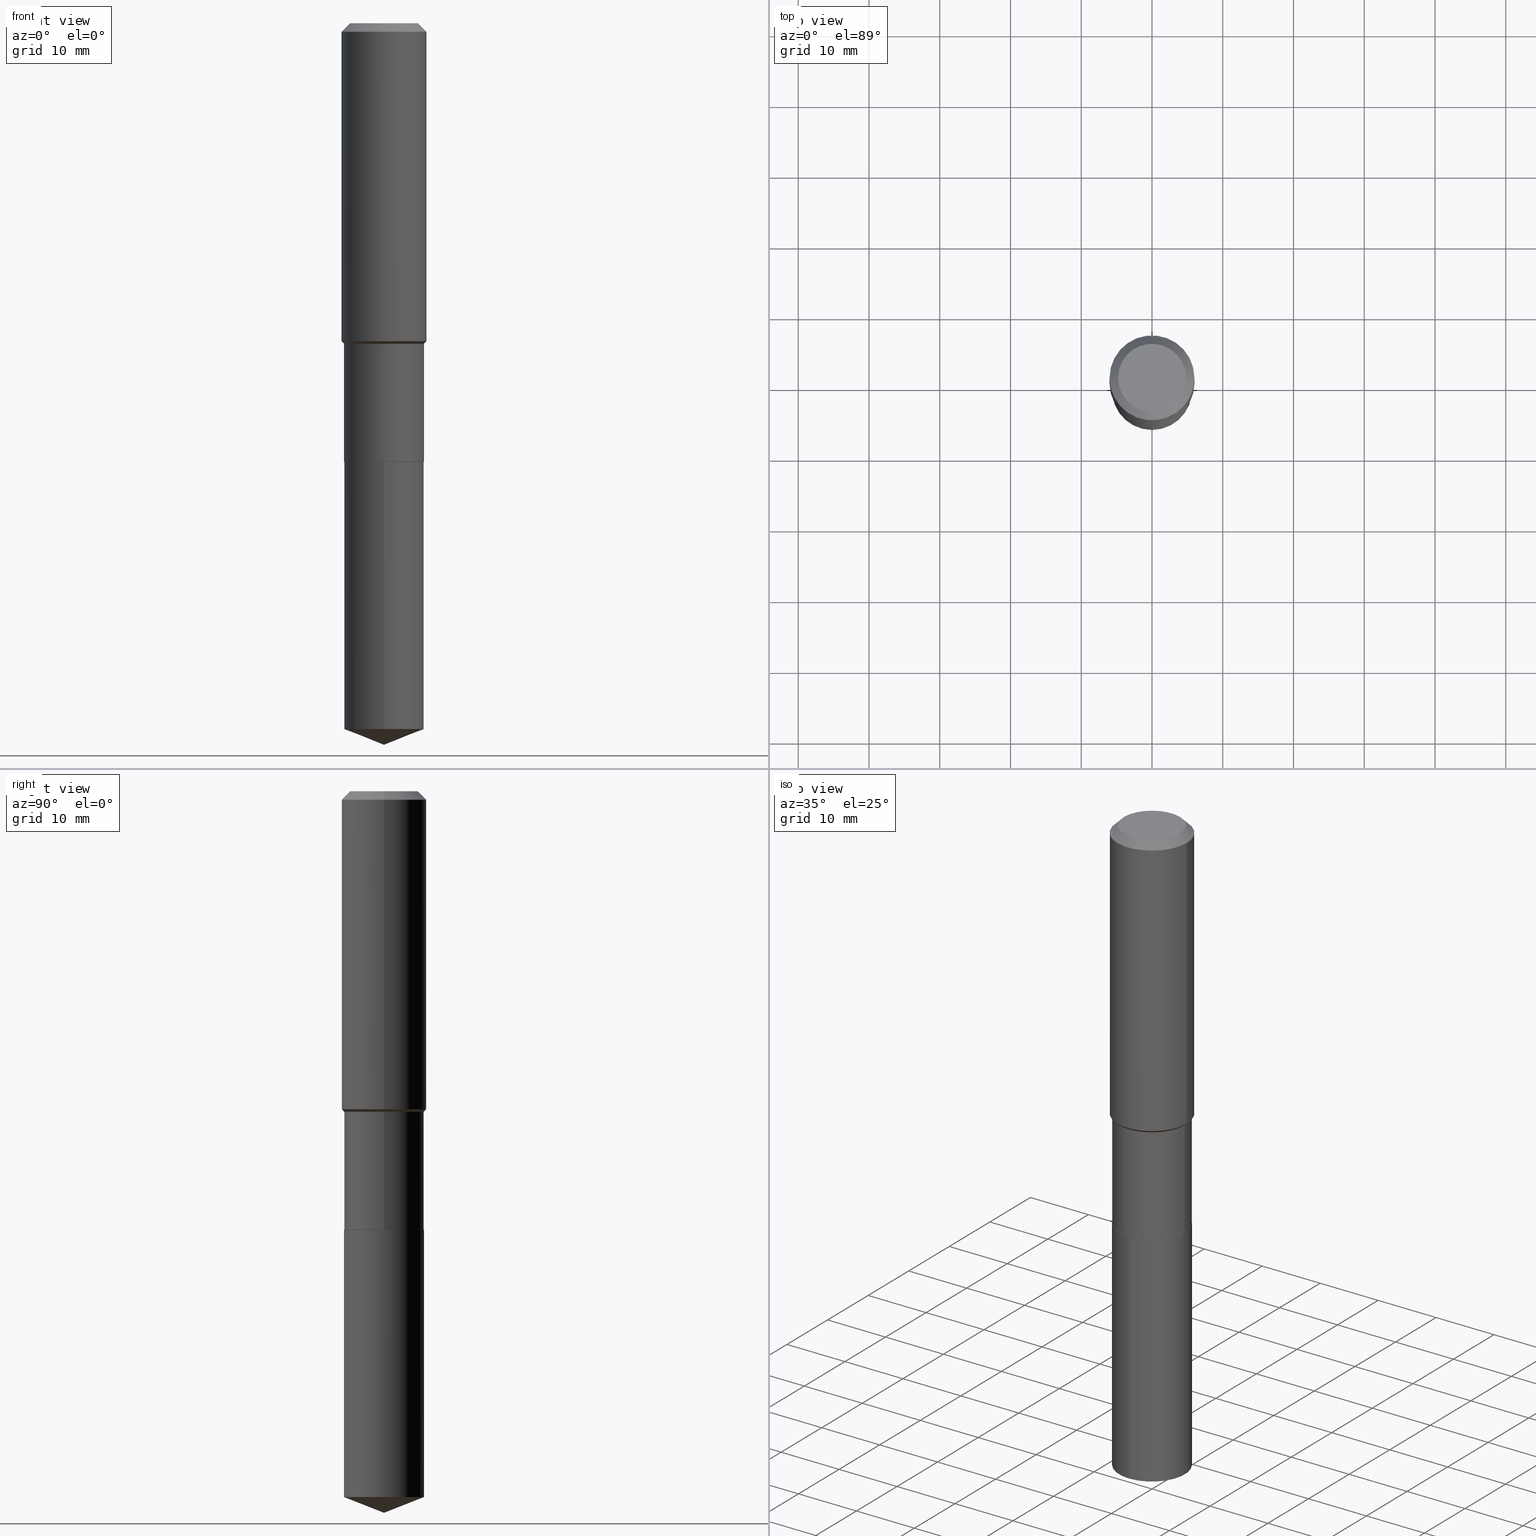
[diagram: canonical four-view strip — front | top / right | iso, engineering-drawing reading convention]
A machine part, canonical four-view strip (front | top / right | iso — engineering-drawing reading convention). The complete STEP part file that produces these views, byte-faithful:
ISO-10303-21;
HEADER;
FILE_DESCRIPTION (( 'STEP AP203' ),
    '1' );
FILE_NAME ('66483.STEP',
    '2024-04-24T23:32:22',
    ( '' ),
    ( '' ),
    'SwSTEP 2.0',
    'SolidWorks 2023',
    '' );
FILE_SCHEMA (( 'CONFIG_CONTROL_DESIGN' ));
ENDSEC;

DATA;
#1 = DIRECTION ( 'NONE',  ( -0.7071067811865453523, 2.468850131082234184E-15, -0.7071067811865496822 ) ) ;
#2 = DIRECTION ( 'NONE',  ( -2.445468806185136597E-29, 3.491481338843145583E-15, 1.000000000000000000 ) ) ;
#3 = ADVANCED_FACE ( 'NONE', ( #105 ), #303, .T. ) ;
#4 = DIRECTION ( 'NONE',  ( -2.445468806185136597E-29, 3.491481338843145583E-15, 1.000000000000000000 ) ) ;
#5 = EDGE_LOOP ( 'NONE', ( #47, #256, #193, #173 ) ) ;
#6 = DIRECTION ( 'NONE',  ( 1.000000000000000000, -6.982962677686262766E-15, 0.000000000000000000 ) ) ;
#7 = VECTOR ( 'NONE', #37, 39.37007874015748854 ) ;
#8 = DIRECTION ( 'NONE',  ( -6.982962677686265133E-15, -1.000000000000000000, 3.498627837350004222E-15 ) ) ;
#9 = AXIS2_PLACEMENT_3D ( 'NONE', #206, #2, #6 ) ;
#10 = CC_DESIGN_PERSON_AND_ORGANIZATION_ASSIGNMENT ( #281, #391, ( #221 ) ) ;
#11 = FACE_OUTER_BOUND ( 'NONE', #5, .T. ) ;
#12 = LINE ( 'NONE', #46, #124 ) ;
#13 = EDGE_CURVE ( 'NONE', #118, #360, #73, .T. ) ;
#14 = CARTESIAN_POINT ( 'NONE',  ( 0.000000000000000000, 0.000000000000000000, 0.000000000000000000 ) ) ;
#15 = CARTESIAN_POINT ( 'NONE',  ( 0.2361999999999999933, -1.814313362916447440E-15, -0.04724000000000028177 ) ) ;
#16 = PERSON_AND_ORGANIZATION_ROLE ( 'creator' ) ;
#17 = ORIENTED_EDGE ( 'NONE', *, *, #141, .F. ) ;
#18 = AXIS2_PLACEMENT_3D ( 'NONE', #471, #140, #287 ) ;
#19 = CARTESIAN_POINT ( 'NONE',  ( 0.2224499999999999256, -7.780766163611943540E-15, -1.783600000000000074 ) ) ;
#20 = APPROVAL_PERSON_ORGANIZATION ( #208, #417, #133 ) ;
#21 = DESIGN_CONTEXT ( 'detailed design', #232, 'design' ) ;
#22 = CONICAL_SURFACE ( 'NONE', #301, 0.2361999999999999933, 0.7853981633974452814 ) ;
#23 = SECURITY_CLASSIFICATION_LEVEL ( 'unclassified' ) ;
#24 = CARTESIAN_POINT ( 'NONE',  ( 0.2362000000000001043, -1.649375784469496920E-15, 1.151752954443000508E-29 ) ) ;
#25 = ORIENTED_EDGE ( 'NONE', *, *, #13, .F. ) ;
#26 = DIRECTION ( 'NONE',  ( 1.000000000000000000, 0.000000000000000000, 0.000000000000000000 ) ) ;
#27 = CARTESIAN_POINT ( 'NONE',  ( 1.155239464041865506E-30, -1.649375784469511859E-16, -0.04724000000000028177 ) ) ;
#28 = VERTEX_POINT ( 'NONE', #339 ) ;
#29 = LOCAL_TIME ( 19, 32, 22.00000000000000000, #325 ) ;
#30 = CLOSED_SHELL ( 'NONE', ( #39, #381, #218, #480, #50 ) ) ;
#31 = DIRECTION ( 'NONE',  ( -0.7071067811864267805, 7.493145998869918709E-15, 0.7071067811866682540 ) ) ;
#32 = DIRECTION ( 'NONE',  ( 1.000000000000000000, -6.982962677686265922E-15, 0.000000000000000000 ) ) ;
#33 = ADVANCED_FACE ( 'NONE', ( #186 ), #22, .T. ) ;
#34 = ORIENTED_EDGE ( 'NONE', *, *, #416, .T. ) ;
#35 = CC_DESIGN_DATE_AND_TIME_ASSIGNMENT ( #283, #174, ( #439 ) ) ;
#36 = CIRCLE ( 'NONE', #327, 0.2224499999999999256 ) ;
#37 = DIRECTION ( 'NONE',  ( 0.7071067811865517916, -2.468850131082302420E-15, 0.7071067811865430208 ) ) ;
#38 = CARTESIAN_POINT ( 'NONE',  ( 3.871214344919766864E-29, -1.152671263135646311E-14, -2.440900000000000070 ) ) ;
#39 = ADVANCED_FACE ( 'NONE', ( #271 ), #201, .T. ) ;
#40 = VERTEX_POINT ( 'NONE', #180 ) ;
#41 = DIRECTION ( 'NONE',  ( 1.000000000000000000, -6.982962677686265133E-15, 0.000000000000000000 ) ) ;
#42 = PRODUCT_RELATED_PRODUCT_CATEGORY ( 'detail', '', ( #317 ) ) ;
#43 = AXIS2_PLACEMENT_3D ( 'NONE', #159, #88, #8 ) ;
#44 = DIRECTION ( 'NONE',  ( -2.445399602320894408E-29, 3.491580442715579660E-15, 1.000000000000000000 ) ) ;
#45 = VECTOR ( 'NONE', #319, 39.37007874015748143 ) ;
#46 = CARTESIAN_POINT ( 'NONE',  ( -0.2361999999999999933, 1.484438206022545019E-15, -0.04724000000000028177 ) ) ;
#47 = ORIENTED_EDGE ( 'NONE', *, *, #449, .F. ) ;
#48 = VERTEX_POINT ( 'NONE', #475 ) ;
#49 =( CONVERSION_BASED_UNIT ( 'INCH', #388 ) LENGTH_UNIT ( ) NAMED_UNIT ( #89 ) );
#50 = ADVANCED_FACE ( 'NONE', ( #248 ), #65, .F. ) ;
#51 = CARTESIAN_POINT ( 'NONE',  ( 5.969144809017299038E-29, -8.522356799982232966E-15, -2.440900000000000070 ) ) ;
#52 = DIRECTION ( 'NONE',  ( -2.445468806185136597E-29, 3.491481338843145583E-15, 1.000000000000000000 ) ) ;
#53 = AXIS2_PLACEMENT_3D ( 'NONE', #334, #292, #332 ) ;
#54 = DATE_TIME_ROLE ( 'creation_date' ) ;
#55 = ORIENTED_EDGE ( 'NONE', *, *, #122, .T. ) ;
#56 = CC_DESIGN_DATE_AND_TIME_ASSIGNMENT ( #216, #54, ( #425 ) ) ;
#57 = COORDINATED_UNIVERSAL_TIME_OFFSET ( 5, 0, .BEHIND. ) ;
#58 = VERTEX_POINT ( 'NONE', #215 ) ;
#59 = DIRECTION ( 'NONE',  ( -6.982962677686265922E-15, -1.000000000000000000, 3.684218467517549413E-15 ) ) ;
#60 = CALENDAR_DATE ( 2024, 24, 4 ) ;
#61 = LINE ( 'NONE', #139, #182 ) ;
#62 = CARTESIAN_POINT ( 'NONE',  ( 5.969144809017299038E-29, -8.522356799982232966E-15, -2.440900000000000070 ) ) ;
#63 = CARTESIAN_POINT ( 'NONE',  ( -9.427742298522546243E-47, 1.346031739168365344E-32, 3.855188123715862256E-18 ) ) ;
#64 = ADVANCED_FACE ( 'NONE', ( #479 ), #68, .T. ) ;
#65 = PLANE ( 'NONE',  #385 ) ;
#66 = CALENDAR_DATE ( 2024, 24, 4 ) ;
#67 = EDGE_LOOP ( 'NONE', ( #266, #478, #344, #313 ) ) ;
#68 = CYLINDRICAL_SURFACE ( 'NONE', #164, 0.2224499999999999811 ) ;
#69 = LINE ( 'NONE', #220, #175 ) ;
#70 = EDGE_CURVE ( 'NONE', #152, #123, #298, .T. ) ;
#71 = AXIS2_PLACEMENT_3D ( 'NONE', #462, #422, #234 ) ;
#72 = CLOSED_SHELL ( 'NONE', ( #85, #33, #3, #470, #64, #387, #451, #293, #157, #311, #392, #331 ) ) ;
#73 = LINE ( 'NONE', #370, #405 ) ;
#74 = DIRECTION ( 'NONE',  ( 1.000000000000000000, -6.982962677686266711E-15, 0.000000000000000000 ) ) ;
#75 = CARTESIAN_POINT ( 'NONE',  ( -4.713871149261273121E-47, 6.730158695841826722E-33, 1.927594061857931128E-18 ) ) ;
#76 = CARTESIAN_POINT ( 'NONE',  ( -0.2224500000000000088, -5.793406271938379830E-15, -2.440399999999999903 ) ) ;
#77 = AXIS2_PLACEMENT_3D ( 'NONE', #196, #125, #41 ) ;
#78 = FACE_OUTER_BOUND ( 'NONE', #302, .T. ) ;
#79 = DIRECTION ( 'NONE',  ( -2.445468806185136877E-29, 3.491481338843145188E-15, 1.000000000000000000 ) ) ;
#80 = EDGE_CURVE ( 'NONE', #237, #123, #181, .T. ) ;
#81 = DIRECTION ( 'NONE',  ( 1.000000000000000000, -6.982962677686265922E-15, 0.000000000000000000 ) ) ;
#82 = DIRECTION ( 'NONE',  ( -2.445468806185136597E-29, 3.491481338843145583E-15, 1.000000000000000000 ) ) ;
#83 = AXIS2_PLACEMENT_3D ( 'NONE', #177, #431, #394 ) ;
#84 = ORIENTED_EDGE ( 'NONE', *, *, #145, .F. ) ;
#85 = ADVANCED_FACE ( 'NONE', ( #330 ), #176, .T. ) ;
#86 = ORIENTED_EDGE ( 'NONE', *, *, #365, .T. ) ;
#87 = CYLINDRICAL_SURFACE ( 'NONE', #228, 0.2224500000000000088 ) ;
#88 = DIRECTION ( 'NONE',  ( -2.445399602320894408E-29, 3.491580442715579660E-15, 1.000000000000000000 ) ) ;
#89 = DIMENSIONAL_EXPONENTS ( 1.000000000000000000, 0.000000000000000000, 0.000000000000000000, 0.000000000000000000, 0.000000000000000000, 0.000000000000000000, 0.000000000000000000 ) ;
#90 = VERTEX_POINT ( 'NONE', #104 ) ;
#91 = EDGE_CURVE ( 'NONE', #419, #360, #421, .T. ) ;
#92 = LOCAL_TIME ( 19, 32, 22.00000000000000000, #472 ) ;
#93 = ORIENTED_EDGE ( 'NONE', *, *, #242, .F. ) ;
#94 = CALENDAR_DATE ( 2024, 24, 4 ) ;
#95 = DIRECTION ( 'NONE',  ( -6.497071151882120625E-15, -0.9304175679820246847, 0.3665012267242971356 ) ) ;
#96 = ORIENTED_EDGE ( 'NONE', *, *, #91, .T. ) ;
#97 = CARTESIAN_POINT ( 'NONE',  ( 5.969144809017299038E-29, -8.522356799982232966E-15, -2.440900000000000070 ) ) ;
#98 = PERSON_AND_ORGANIZATION ( #154, #259 ) ;
#99 = ORIENTED_EDGE ( 'NONE', *, *, #145, .T. ) ;
#100 = VECTOR ( 'NONE', #219, 39.37007874015748143 ) ;
#101 = AXIS2_PLACEMENT_3D ( 'NONE', #62, #434, #338 ) ;
#102 = DIRECTION ( 'NONE',  ( 0.000000000000000000, 0.000000000000000000, 1.000000000000000000 ) ) ;
#103 = EDGE_LOOP ( 'NONE', ( #348, #270, #346, #17 ) ) ;
#104 = CARTESIAN_POINT ( 'NONE',  ( 1.580602315698438773E-15, 0.2224499999999862698, -3.928074614699457623 ) ) ;
#105 = FACE_OUTER_BOUND ( 'NONE', #310, .T. ) ;
#106 = DIRECTION ( 'NONE',  ( -2.445468806185136877E-29, 3.491481338843145188E-15, 1.000000000000000000 ) ) ;
#107 = EDGE_LOOP ( 'NONE', ( #274, #55, #445 ) ) ;
#108 = CARTESIAN_POINT ( 'NONE',  ( 0.2224499999999999811, -1.553360047651309885E-15, 1.084705523775805705E-29 ) ) ;
#109 = VECTOR ( 'NONE', #261, 39.37007874015748143 ) ;
#110 = AXIS2_PLACEMENT_3D ( 'NONE', #351, #117, #81 ) ;
#111 = DIRECTION ( 'NONE',  ( -2.445468806185136597E-29, 3.491481338843145583E-15, 1.000000000000000000 ) ) ;
#112 = ORIENTED_EDGE ( 'NONE', *, *, #242, .T. ) ;
#113 = CONICAL_SURFACE ( 'NONE', #83, 0.2361999999999999933, 0.7853981633974452814 ) ;
#114 = CIRCLE ( 'NONE', #9, 0.2224500000000000088 ) ;
#115 = ORIENTED_EDGE ( 'NONE', *, *, #128, .F. ) ;
#116 =( NAMED_UNIT ( * ) PLANE_ANGLE_UNIT ( ) SI_UNIT ( $, .RADIAN. ) );
#117 = DIRECTION ( 'NONE',  ( -2.445468806185136597E-29, 3.491481338843145583E-15, 1.000000000000000000 ) ) ;
#118 = VERTEX_POINT ( 'NONE', #255 ) ;
#119 = EDGE_CURVE ( 'NONE', #350, #419, #404, .T. ) ;
#120 =( LENGTH_UNIT ( ) NAMED_UNIT ( * ) SI_UNIT ( $, .METRE. ) );
#121 = LINE ( 'NONE', #337, #289 ) ;
#122 = EDGE_CURVE ( 'NONE', #58, #143, #69, .T. ) ;
#123 = VERTEX_POINT ( 'NONE', #15 ) ;
#124 = VECTOR ( 'NONE', #1, 39.37007874015748143 ) ;
#125 = DIRECTION ( 'NONE',  ( -2.445468806185136597E-29, 3.491481338843145583E-15, 1.000000000000000000 ) ) ;
#126 = DIRECTION ( 'NONE',  ( 1.000000000000000000, -6.982962677686266711E-15, 0.000000000000000000 ) ) ;
#127 = DIRECTION ( 'NONE',  ( -2.445399602320894408E-29, 3.491580442715579660E-15, 1.000000000000000000 ) ) ;
#128 = EDGE_CURVE ( 'NONE', #118, #350, #386, .T. ) ;
#129 = APPROVAL_STATUS ( 'not_yet_approved' ) ;
#130 = DIRECTION ( 'NONE',  ( -2.445399602320894408E-29, 3.491580442715579660E-15, 1.000000000000000000 ) ) ;
#131 = VERTEX_POINT ( 'NONE', #172 ) ;
#132 = CC_DESIGN_PERSON_AND_ORGANIZATION_ASSIGNMENT ( #465, #432, ( #439 ) ) ;
#133 = APPROVAL_ROLE ( '' ) ;
#134 = AXIS2_PLACEMENT_3D ( 'NONE', #448, #341, #260 ) ;
#135 = CIRCLE ( 'NONE', #77, 0.2219500000000000084 ) ;
#136 = DIRECTION ( 'NONE',  ( 1.000000000000000000, -6.982962677686266711E-15, 4.876185090822587894E-29 ) ) ;
#137 = CARTESIAN_POINT ( 'NONE',  ( 4.328112966626764519E-29, -6.179398247551541124E-15, -1.769849999999999923 ) ) ;
#138 = ORIENTED_EDGE ( 'NONE', *, *, #141, .T. ) ;
#139 = CARTESIAN_POINT ( 'NONE',  ( 0.2361999999999999933, -1.785387205520586782E-15, -0.04724000000000028177 ) ) ;
#140 = DIRECTION ( 'NONE',  ( -2.445468806185136597E-29, 3.491481338843145583E-15, 1.000000000000000000 ) ) ;
#141 = EDGE_CURVE ( 'NONE', #40, #237, #412, .T. ) ;
#142 = DIRECTION ( 'NONE',  ( 1.000000000000000000, -6.982962677686266711E-15, 4.876176775795935232E-29 ) ) ;
#143 = VERTEX_POINT ( 'NONE', #468 ) ;
#144 = DIRECTION ( 'NONE',  ( -2.445468806185136597E-29, 3.491481338843145583E-15, 1.000000000000000000 ) ) ;
#145 = EDGE_CURVE ( 'NONE', #192, #231, #446, .T. ) ;
#146 = EDGE_LOOP ( 'NONE', ( #463, #322 ) ) ;
#147 = CARTESIAN_POINT ( 'NONE',  ( 1.155239464041865506E-30, -1.649375784469511859E-16, -0.04724000000000028177 ) ) ;
#148 = CIRCLE ( 'NONE', #71, 0.2224500000000000088 ) ;
#149 = ORIENTED_EDGE ( 'NONE', *, *, #466, .F. ) ;
#150 = EDGE_LOOP ( 'NONE', ( #217, #418, #328, #485 ) ) ;
#151 = CYLINDRICAL_SURFACE ( 'NONE', #460, 0.2224499999999999811 ) ;
#152 = VERTEX_POINT ( 'NONE', #437 ) ;
#153 = DIRECTION ( 'NONE',  ( -2.445468806185136597E-29, 3.491481338843145583E-15, 1.000000000000000000 ) ) ;
#154 = PERSON ( 'UNSPECIFIED', 'UNSPECIFIED', 'UNSPECIFIED', ('UNSPECIFIED'), ('UNSPECIFIED'), ('UNSPECIFIED') ) ;
#155 = ORIENTED_EDGE ( 'NONE', *, *, #249, .T. ) ;
#156 =( GEOMETRIC_REPRESENTATION_CONTEXT ( 3 ) GLOBAL_UNCERTAINTY_ASSIGNED_CONTEXT ( ( #368 ) ) GLOBAL_UNIT_ASSIGNED_CONTEXT ( ( #49, #116, #163 ) ) REPRESENTATION_CONTEXT ( 'NONE', 'WORKASPACE' ) );
#157 = ADVANCED_FACE ( 'NONE', ( #399 ), #113, .T. ) ;
#158 = CARTESIAN_POINT ( 'NONE',  ( -1.553360047651250128E-15, -0.2224500000000085576, -2.440899999999999181 ) ) ;
#159 = CARTESIAN_POINT ( 'NONE',  ( -8.645541479177115506E-28, 1.234428992761355637E-13, 35.35437874015748605 ) ) ;
#160 = EDGE_CURVE ( 'NONE', #48, #426, #349, .T. ) ;
#161 = FACE_OUTER_BOUND ( 'NONE', #253, .T. ) ;
#162 = ORIENTED_EDGE ( 'NONE', *, *, #376, .F. ) ;
#163 =( NAMED_UNIT ( * ) SI_UNIT ( $, .STERADIAN. ) SOLID_ANGLE_UNIT ( ) );
#164 = AXIS2_PLACEMENT_3D ( 'NONE', #441, #144, #142 ) ;
#165 = CARTESIAN_POINT ( 'NONE',  ( -0.2224499999999999811, 1.580602315698342729E-15, -1.094217110827203649E-29 ) ) ;
#166 = CARTESIAN_POINT ( 'NONE',  ( 0.2362000000000002153, -7.828774032021037649E-15, -1.769849999999999923 ) ) ;
#167 = EDGE_CURVE ( 'NONE', #131, #237, #210, .T. ) ;
#168 = APPROVAL_STATUS ( 'not_yet_approved' ) ;
#169 = CARTESIAN_POINT ( 'NONE',  ( 0.1889600000000000168, -1.540873453589747738E-15, 3.855188123725863225E-18 ) ) ;
#170 = EDGE_CURVE ( 'NONE', #419, #131, #296, .T. ) ;
#171 = CALENDAR_DATE ( 2024, 24, 4 ) ;
#172 = CARTESIAN_POINT ( 'NONE',  ( 0.2224499999999999256, -7.780766163611943540E-15, -1.783600000000000074 ) ) ;
#173 = ORIENTED_EDGE ( 'NONE', *, *, #430, .F. ) ;
#174 = DATE_TIME_ROLE ( 'classification_date' ) ;
#175 = VECTOR ( 'NONE', #95, 39.37007874015747433 ) ;
#176 = CONICAL_SURFACE ( 'NONE', #53, 0.2219500000000000084, 0.7853981633972775267 ) ;
#177 = CARTESIAN_POINT ( 'NONE',  ( 1.155239464041865506E-30, -1.649375784469511859E-16, -0.04724000000000028177 ) ) ;
#178 = APPROVAL_DATE_TIME ( #474, #225 ) ;
#179 = ORIENTED_EDGE ( 'NONE', *, *, #194, .F. ) ;
#180 = CARTESIAN_POINT ( 'NONE',  ( -0.2362000000000002153, -4.501096305686182363E-15, -1.769849999999999923 ) ) ;
#181 = LINE ( 'NONE', #24, #258 ) ;
#182 = VECTOR ( 'NONE', #230, 39.37007874015748143 ) ;
#183 = CONICAL_SURFACE ( 'NONE', #290, 0.2224499999999999256, 0.7853981633974544962 ) ;
#184 = EDGE_CURVE ( 'NONE', #143, #90, #362, .T. ) ;
#185 = ORIENTED_EDGE ( 'NONE', *, *, #477, .T. ) ;
#186 = FACE_OUTER_BOUND ( 'NONE', #409, .T. ) ;
#187 = DIRECTION ( 'NONE',  ( -2.445468806185136597E-29, 3.491481338843145583E-15, 1.000000000000000000 ) ) ;
#188 = CYLINDRICAL_SURFACE ( 'NONE', #354, 0.2362000000000001043 ) ;
#189 = AXIS2_PLACEMENT_3D ( 'NONE', #38, #420, #233 ) ;
#190 = LOCAL_TIME ( 19, 32, 22.00000000000000000, #285 ) ;
#191 = ORIENTED_EDGE ( 'NONE', *, *, #170, .F. ) ;
#192 = VERTEX_POINT ( 'NONE', #169 ) ;
#193 = ORIENTED_EDGE ( 'NONE', *, *, #435, .T. ) ;
#194 = EDGE_CURVE ( 'NONE', #123, #152, #279, .T. ) ;
#195 = ORIENTED_EDGE ( 'NONE', *, *, #70, .T. ) ;
#196 = CARTESIAN_POINT ( 'NONE',  ( 5.969144809017300159E-29, -8.522356799982234543E-15, -2.440900000000000070 ) ) ;
#197 = CC_DESIGN_PERSON_AND_ORGANIZATION_ASSIGNMENT ( #393, #16, ( #425 ) ) ;
#198 = AXIS2_PLACEMENT_3D ( 'NONE', #14, #102, #26 ) ;
#199 = CARTESIAN_POINT ( 'NONE',  ( 1.580602315698439167E-15, 0.2224499999999915156, -2.440900000000000514 ) ) ;
#200 = ORIENTED_EDGE ( 'NONE', *, *, #80, .T. ) ;
#201 = CYLINDRICAL_SURFACE ( 'NONE', #101, 0.2224500000000000088 ) ;
#202 = ORIENTED_EDGE ( 'NONE', *, *, #170, .T. ) ;
#203 = LINE ( 'NONE', #158, #244 ) ;
#204 = CIRCLE ( 'NONE', #407, 0.2224500000000000088 ) ;
#205 = CC_DESIGN_APPROVAL ( #367, ( #439 ) ) ;
#206 = CARTESIAN_POINT ( 'NONE',  ( 5.967922074614207358E-29, -8.520611059312812251E-15, -2.440399999999999903 ) ) ;
#207 = APPROVAL_DATE_TIME ( #245, #417 ) ;
#208 = PERSON_AND_ORGANIZATION ( #154, #259 ) ;
#209 = ORIENTED_EDGE ( 'NONE', *, *, #167, .F. ) ;
#210 = LINE ( 'NONE', #19, #7 ) ;
#211 = PERSON_AND_ORGANIZATION_ROLE ( 'creator' ) ;
#212 = CIRCLE ( 'NONE', #476, 0.2362000000000002153 ) ;
#213 = DIRECTION ( 'NONE',  ( -2.445468806185136597E-29, 3.491481338843145583E-15, 1.000000000000000000 ) ) ;
#214 = APPROVAL_DATE_TIME ( #400, #367 ) ;
#215 = CARTESIAN_POINT ( 'NONE',  ( 9.819991183040015308E-29, -1.402113958381295422E-14, -4.015699999999999825 ) ) ;
#216 = DATE_AND_TIME ( #66, #92 ) ;
#217 = ORIENTED_EDGE ( 'NONE', *, *, #466, .T. ) ;
#218 = ADVANCED_FACE ( 'NONE', ( #276 ), #389, .T. ) ;
#219 = DIRECTION ( 'NONE',  ( 0.7071067811864267805, -2.468850131080992517E-15, 0.7071067811866682540 ) ) ;
#220 = CARTESIAN_POINT ( 'NONE',  ( 9.819991183040015308E-29, -1.402113958381295106E-14, -4.015699999999999825 ) ) ;
#221 = PRODUCT_DEFINITION_FORMATION_WITH_SPECIFIED_SOURCE ( 'ANY', '', #317, .NOT_KNOWN. ) ;
#222 = EDGE_CURVE ( 'NONE', #28, #131, #340, .T. ) ;
#223 = CARTESIAN_POINT ( 'NONE',  ( 0.000000000000000000, 0.000000000000000000, 0.000000000000000000 ) ) ;
#224 = CARTESIAN_POINT ( 'NONE',  ( 0.000000000000000000, 0.000000000000000000, 0.000000000000000000 ) ) ;
#225 = APPROVAL ( #129, 'UNSPECIFIED' ) ;
#226 = DIRECTION ( 'NONE',  ( -2.445399602320894408E-29, 3.491580442715579660E-15, 1.000000000000000000 ) ) ;
#227 = AXIS2_PLACEMENT_3D ( 'NONE', #379, #130, #352 ) ;
#228 = AXIS2_PLACEMENT_3D ( 'NONE', #454, #44, #275 ) ;
#229 = ORIENTED_EDGE ( 'NONE', *, *, #444, .T. ) ;
#230 = DIRECTION ( 'NONE',  ( 0.7071067811865453523, -7.319954787623248157E-15, -0.7071067811865496822 ) ) ;
#231 = VERTEX_POINT ( 'NONE', #241 ) ;
#232 = APPLICATION_CONTEXT ( 'configuration controlled 3d designs of mechanical parts and assemblies' ) ;
#233 = DIRECTION ( 'NONE',  ( 1.000000000000000000, -6.982962677686265922E-15, 4.876176775795935793E-29 ) ) ;
#234 = DIRECTION ( 'NONE',  ( -6.982962677686265922E-15, -1.000000000000000000, 2.456145645011699872E-15 ) ) ;
#235 = EDGE_LOOP ( 'NONE', ( #424, #185, #374 ) ) ;
#236 = CC_DESIGN_APPROVAL ( #225, ( #425 ) ) ;
#237 = VERTEX_POINT ( 'NONE', #166 ) ;
#238 = AXIS2_PLACEMENT_3D ( 'NONE', #224, #111, #403 ) ;
#239 = LINE ( 'NONE', #267, #45 ) ;
#240 = EDGE_CURVE ( 'NONE', #90, #143, #148, .T. ) ;
#241 = CARTESIAN_POINT ( 'NONE',  ( -0.1889600000000000168, 1.401969416799070942E-15, 3.855188123706346622E-18 ) ) ;
#242 = EDGE_CURVE ( 'NONE', #231, #152, #12, .T. ) ;
#243 = CARTESIAN_POINT ( 'NONE',  ( 0.2224500000000000088, -1.007397110696412214E-14, -2.440399999999999903 ) ) ;
#244 = VECTOR ( 'NONE', #423, 39.37007874015748143 ) ;
#245 = DATE_AND_TIME ( #171, #190 ) ;
#246 = ORIENTED_EDGE ( 'NONE', *, *, #444, .F. ) ;
#247 = SHAPE_DEFINITION_REPRESENTATION ( #263, #265 ) ;
#248 = FACE_OUTER_BOUND ( 'NONE', #146, .T. ) ;
#249 = EDGE_CURVE ( 'NONE', #28, #40, #121, .T. ) ;
#250 = EDGE_LOOP ( 'NONE', ( #96, #34, #433, #191 ) ) ;
#251 = DIRECTION ( 'NONE',  ( -2.445399602320894408E-29, 3.491580442715579660E-15, 1.000000000000000000 ) ) ;
#252 = APPROVAL_STATUS ( 'not_yet_approved' ) ;
#253 = EDGE_LOOP ( 'NONE', ( #86, #155, #162, #209 ) ) ;
#254 = PERSON_AND_ORGANIZATION ( #154, #259 ) ;
#255 = CARTESIAN_POINT ( 'NONE',  ( -0.2219500000000000084, -6.942657970788580328E-15, -2.440900000000000070 ) ) ;
#256 = ORIENTED_EDGE ( 'NONE', *, *, #240, .T. ) ;
#257 = DIRECTION ( 'NONE',  ( -2.445468806185136597E-29, 3.491481338843145583E-15, 1.000000000000000000 ) ) ;
#258 = VECTOR ( 'NONE', #106, 39.37007874015748143 ) ;
#259 = ORGANIZATION ( 'UNSPECIFIED', 'UNSPECIFIED', '' ) ;
#260 = DIRECTION ( 'NONE',  ( 1.000000000000000000, -6.982962677686265133E-15, 0.000000000000000000 ) ) ;
#261 = DIRECTION ( 'NONE',  ( -2.445468806185136877E-29, 3.491481338843145188E-15, 1.000000000000000000 ) ) ;
#262 = CARTESIAN_POINT ( 'NONE',  ( -9.427742298522546243E-47, 1.346031739168365344E-32, 3.855188123715862256E-18 ) ) ;
#263 = PRODUCT_DEFINITION_SHAPE ( 'NONE', 'NONE',  #425 ) ;
#264 = DIRECTION ( 'NONE',  ( 1.000000000000000000, -6.982962677686266711E-15, 4.876176775795935232E-29 ) ) ;
#265 = ADVANCED_BREP_SHAPE_REPRESENTATION ( '66483', ( #320, #464, #198 ), #156 ) ;
#266 = ORIENTED_EDGE ( 'NONE', *, *, #184, .T. ) ;
#267 = CARTESIAN_POINT ( 'NONE',  ( 1.580602315698402288E-15, 0.2224499999999914601, -2.440900000000000514 ) ) ;
#268 = ORIENTED_EDGE ( 'NONE', *, *, #442, .F. ) ;
#269 = CARTESIAN_POINT ( 'NONE',  ( 4.361738162711809273E-29, -6.227406115960634444E-15, -1.783600000000000074 ) ) ;
#270 = ORIENTED_EDGE ( 'NONE', *, *, #222, .T. ) ;
#271 = FACE_OUTER_BOUND ( 'NONE', #67, .T. ) ;
#272 = AXIS2_PLACEMENT_3D ( 'NONE', #306, #226, #377 ) ;
#273 = ORIENTED_EDGE ( 'NONE', *, *, #194, .T. ) ;
#274 = ORIENTED_EDGE ( 'NONE', *, *, #477, .F. ) ;
#275 = DIRECTION ( 'NONE',  ( -6.982962677686265922E-15, -1.000000000000000000, 3.684218467517549413E-15 ) ) ;
#276 = FACE_OUTER_BOUND ( 'NONE', #107, .T. ) ;
#277 = APPROVAL_ROLE ( '' ) ;
#278 = ORIENTED_EDGE ( 'NONE', *, *, #376, .T. ) ;
#279 = CIRCLE ( 'NONE', #469, 0.2361999999999999933 ) ;
#280 = CC_DESIGN_SECURITY_CLASSIFICATION ( #439, ( #221 ) ) ;
#281 = PERSON_AND_ORGANIZATION ( #154, #259 ) ;
#282 = DIRECTION ( 'NONE',  ( -2.445468806185136597E-29, 3.491481338843145583E-15, 1.000000000000000000 ) ) ;
#283 = DATE_AND_TIME ( #60, #414 ) ;
#284 = DIRECTION ( 'NONE',  ( -2.445468806185136597E-29, 3.491481338843145583E-15, 1.000000000000000000 ) ) ;
#285 = COORDINATED_UNIVERSAL_TIME_OFFSET ( 5, 0, .BEHIND. ) ;
#286 = ORIENTED_EDGE ( 'NONE', *, *, #119, .T. ) ;
#287 = DIRECTION ( 'NONE',  ( 1.000000000000000000, -6.982962677686265133E-15, 0.000000000000000000 ) ) ;
#288 = EDGE_CURVE ( 'NONE', #192, #123, #61, .T. ) ;
#289 = VECTOR ( 'NONE', #467, 39.37007874015748854 ) ;
#290 = AXIS2_PLACEMENT_3D ( 'NONE', #459, #52, #312 ) ;
#291 = APPLICATION_CONTEXT ( 'configuration controlled 3d designs of mechanical parts and assemblies' ) ;
#292 = DIRECTION ( 'NONE',  ( -2.445468806185136597E-29, 3.491481338843145583E-15, 1.000000000000000000 ) ) ;
#293 = ADVANCED_FACE ( 'NONE', ( #371 ), #188, .T. ) ;
#294 = DIRECTION ( 'NONE',  ( 6.982962677686265922E-15, 1.000000000000000000, -3.491580442715579660E-15 ) ) ;
#295 = ORIENTED_EDGE ( 'NONE', *, *, #288, .T. ) ;
#296 = LINE ( 'NONE', #108, #109 ) ;
#297 = DIRECTION ( 'NONE',  ( 2.445468806185136597E-29, -3.491481338843145583E-15, -1.000000000000000000 ) ) ;
#298 = CIRCLE ( 'NONE', #375, 0.2361999999999999933 ) ;
#299 = DIRECTION ( 'NONE',  ( -2.445468806185136597E-29, 3.491481338843145583E-15, 1.000000000000000000 ) ) ;
#300 = EDGE_CURVE ( 'NONE', #231, #192, #447, .T. ) ;
#301 = AXIS2_PLACEMENT_3D ( 'NONE', #147, #297, #357 ) ;
#302 = EDGE_LOOP ( 'NONE', ( #149, #115 ) ) ;
#303 = CYLINDRICAL_SURFACE ( 'NONE', #238, 0.2362000000000001043 ) ;
#304 = FACE_OUTER_BOUND ( 'NONE', #324, .T. ) ;
#305 = ORIENTED_EDGE ( 'NONE', *, *, #288, .F. ) ;
#306 = CARTESIAN_POINT ( 'NONE',  ( -8.645541479177115506E-28, 1.234428992761355637E-13, 35.35437874015748605 ) ) ;
#307 = ORIENTED_EDGE ( 'NONE', *, *, #416, .F. ) ;
#308 = LINE ( 'NONE', #353, #428 ) ;
#309 = CONICAL_SURFACE ( 'NONE', #134, 0.2219500000000000084, 0.7853981633972775267 ) ;
#310 = EDGE_LOOP ( 'NONE', ( #278, #402, #179, #356 ) ) ;
#311 = ADVANCED_FACE ( 'NONE', ( #304 ), #481, .F. ) ;
#312 = DIRECTION ( 'NONE',  ( 1.000000000000000000, -6.982962677686265922E-15, 0.000000000000000000 ) ) ;
#313 = ORIENTED_EDGE ( 'NONE', *, *, #435, .F. ) ;
#314 = LINE ( 'NONE', #355, #455 ) ;
#315 = ORIENTED_EDGE ( 'NONE', *, *, #222, .F. ) ;
#316 = CARTESIAN_POINT ( 'NONE',  ( 1.155239464041865506E-30, -1.649375784469511859E-16, -0.04724000000000028177 ) ) ;
#317 = PRODUCT ( '66483', '66483', '', ( #333 ) ) ;
#318 = VECTOR ( 'NONE', #384, 39.37007874015748143 ) ;
#319 = DIRECTION ( 'NONE',  ( -2.445399602320894689E-29, 3.491580442715579660E-15, 1.000000000000000000 ) ) ;
#320 = MANIFOLD_SOLID_BREP ( 'Body-Move/Copy2[1]', #30 ) ;
#321 = ORIENTED_EDGE ( 'NONE', *, *, #300, .T. ) ;
#322 = ORIENTED_EDGE ( 'NONE', *, *, #430, .T. ) ;
#323 = DIRECTION ( 'NONE',  ( 1.000000000000000000, -6.982962677686265922E-15, 0.000000000000000000 ) ) ;
#324 = EDGE_LOOP ( 'NONE', ( #321, #99 ) ) ;
#325 = COORDINATED_UNIVERSAL_TIME_OFFSET ( 5, 0, .BEHIND. ) ;
#326 = DIRECTION ( 'NONE',  ( 1.000000000000000000, -6.982962677686266711E-15, 0.000000000000000000 ) ) ;
#327 = AXIS2_PLACEMENT_3D ( 'NONE', #373, #153, #32 ) ;
#328 = ORIENTED_EDGE ( 'NONE', *, *, #91, .F. ) ;
#329 = APPROVAL_PERSON_ORGANIZATION ( #429, #225, #277 ) ;
#330 = FACE_OUTER_BOUND ( 'NONE', #150, .T. ) ;
#331 = ADVANCED_FACE ( 'NONE', ( #450 ), #309, .T. ) ;
#332 = DIRECTION ( 'NONE',  ( 1.000000000000000000, -6.982962677686265133E-15, 0.000000000000000000 ) ) ;
#333 = MECHANICAL_CONTEXT ( 'NONE', #291, 'mechanical' ) ;
#334 = CARTESIAN_POINT ( 'NONE',  ( 5.969144809017300159E-29, -8.522356799982234543E-15, -2.440900000000000070 ) ) ;
#335 = AXIS2_PLACEMENT_3D ( 'NONE', #473, #284, #396 ) ;
#336 = ORIENTED_EDGE ( 'NONE', *, *, #128, .T. ) ;
#337 = CARTESIAN_POINT ( 'NONE',  ( -0.2224499999999999256, -4.646803800262291320E-15, -1.783600000000000074 ) ) ;
#338 = DIRECTION ( 'NONE',  ( -6.982962677686265922E-15, -1.000000000000000000, 3.684218467517549413E-15 ) ) ;
#339 = CARTESIAN_POINT ( 'NONE',  ( -0.2224499999999999256, -5.793406271938379830E-15, -1.783600000000000074 ) ) ;
#340 = CIRCLE ( 'NONE', #369, 0.2224499999999999256 ) ;
#341 = DIRECTION ( 'NONE',  ( -2.445468806185136597E-29, 3.491481338843145583E-15, 1.000000000000000000 ) ) ;
#342 = FACE_OUTER_BOUND ( 'NONE', #458, .T. ) ;
#343 = ORIENTED_EDGE ( 'NONE', *, *, #300, .F. ) ;
#344 = ORIENTED_EDGE ( 'NONE', *, *, #160, .F. ) ;
#345 = DIRECTION ( 'NONE',  ( 1.000000000000000000, -6.982962677686266711E-15, 4.876176775795935793E-29 ) ) ;
#346 = ORIENTED_EDGE ( 'NONE', *, *, #167, .T. ) ;
#347 = FACE_OUTER_BOUND ( 'NONE', #103, .T. ) ;
#348 = ORIENTED_EDGE ( 'NONE', *, *, #249, .F. ) ;
#349 = CIRCLE ( 'NONE', #438, 0.2224500000000000088 ) ;
#350 = VERTEX_POINT ( 'NONE', #410 ) ;
#351 = CARTESIAN_POINT ( 'NONE',  ( 4.361738162711809273E-29, -6.227406115960634444E-15, -1.783600000000000074 ) ) ;
#352 = DIRECTION ( 'NONE',  ( -6.982962677686265922E-15, -1.000000000000000000, 2.456145645011699872E-15 ) ) ;
#353 = CARTESIAN_POINT ( 'NONE',  ( -0.2362000000000001043, 1.678301941865357380E-15, -1.161852468318209317E-29 ) ) ;
#354 = AXIS2_PLACEMENT_3D ( 'NONE', #223, #299, #345 ) ;
#355 = CARTESIAN_POINT ( 'NONE',  ( 9.820331984917436461E-29, -1.402065577852850472E-14, -4.015699999999999825 ) ) ;
#356 = ORIENTED_EDGE ( 'NONE', *, *, #80, .F. ) ;
#357 = DIRECTION ( 'NONE',  ( -1.000000000000000000, 6.982962677686266711E-15, 0.000000000000000000 ) ) ;
#358 = CC_DESIGN_PERSON_AND_ORGANIZATION_ASSIGNMENT ( #254, #211, ( #221 ) ) ;
#359 = COORDINATED_UNIVERSAL_TIME_OFFSET ( 5, 0, .BEHIND. ) ;
#360 = VERTEX_POINT ( 'NONE', #76 ) ;
#361 = CARTESIAN_POINT ( 'NONE',  ( 5.969144809017299038E-29, -8.522356799982232966E-15, -2.440900000000000070 ) ) ;
#362 = CIRCLE ( 'NONE', #227, 0.2224500000000000088 ) ;
#363 = APPROVAL_PERSON_ORGANIZATION ( #98, #367, #398 ) ;
#364 = PERSON_AND_ORGANIZATION_ROLE ( 'design_owner' ) ;
#365 = EDGE_CURVE ( 'NONE', #131, #28, #36, .T. ) ;
#366 = DIRECTION ( 'NONE',  ( 1.000000000000000000, -6.982962677686266711E-15, 0.000000000000000000 ) ) ;
#367 = APPROVAL ( #252, 'UNSPECIFIED' ) ;
#368 = UNCERTAINTY_MEASURE_WITH_UNIT (LENGTH_MEASURE( 1.000000000000000082E-05 ), #49, 'distance_accuracy_value', 'NONE');
#369 = AXIS2_PLACEMENT_3D ( 'NONE', #269, #82, #323 ) ;
#370 = CARTESIAN_POINT ( 'NONE',  ( -0.2219500000000000084, -6.945307197962691530E-15, -2.440900000000000070 ) ) ;
#371 = FACE_OUTER_BOUND ( 'NONE', #456, .T. ) ;
#372 = DIRECTION ( 'NONE',  ( -1.000000000000000000, 6.982962677686265922E-15, -4.876176775795935793E-29 ) ) ;
#373 = CARTESIAN_POINT ( 'NONE',  ( 4.361738162711809273E-29, -6.227406115960634444E-15, -1.783600000000000074 ) ) ;
#374 = ORIENTED_EDGE ( 'NONE', *, *, #184, .F. ) ;
#375 = AXIS2_PLACEMENT_3D ( 'NONE', #27, #257, #366 ) ;
#376 = EDGE_CURVE ( 'NONE', #237, #40, #212, .T. ) ;
#377 = DIRECTION ( 'NONE',  ( -6.982962677686265133E-15, -1.000000000000000000, 3.498627837350004222E-15 ) ) ;
#378 = CONICAL_SURFACE ( 'NONE', #110, 0.2224499999999999256, 0.7853981633974544962 ) ;
#379 = CARTESIAN_POINT ( 'NONE',  ( 9.605881020385081539E-29, -1.371494659956993350E-14, -3.928074614699457179 ) ) ;
#380 = PLANE ( 'NONE',  #189 ) ;
#381 = ADVANCED_FACE ( 'NONE', ( #483 ), #406, .T. ) ;
#382 = EDGE_LOOP ( 'NONE', ( #25, #336, #286, #246 ) ) ;
#383 = APPLICATION_PROTOCOL_DEFINITION ( 'international standard', 'config_control_design', 1994, #291 ) ;
#384 = DIRECTION ( 'NONE',  ( -2.445468806185136877E-29, 3.491481338843145188E-15, 1.000000000000000000 ) ) ;
#385 = AXIS2_PLACEMENT_3D ( 'NONE', #361, #443, #294 ) ;
#386 = CIRCLE ( 'NONE', #18, 0.2219500000000000084 ) ;
#387 = ADVANCED_FACE ( 'NONE', ( #342 ), #151, .T. ) ;
#388 = LENGTH_MEASURE_WITH_UNIT ( LENGTH_MEASURE( 0.02539999999999999897 ), #120 );
#389 = CONICAL_SURFACE ( 'NONE', #43, 99.94676754583997536, 1.195550537616119513 ) ;
#390 = CC_DESIGN_APPROVAL ( #417, ( #221 ) ) ;
#391 = PERSON_AND_ORGANIZATION_ROLE ( 'design_supplier' ) ;
#392 = ADVANCED_FACE ( 'NONE', ( #78 ), #380, .F. ) ;
#393 = PERSON_AND_ORGANIZATION ( #154, #259 ) ;
#394 = DIRECTION ( 'NONE',  ( -1.000000000000000000, 6.982962677686266711E-15, 0.000000000000000000 ) ) ;
#395 = PERSON_AND_ORGANIZATION ( #154, #259 ) ;
#396 = DIRECTION ( 'NONE',  ( 1.000000000000000000, -6.982962677686262766E-15, 0.000000000000000000 ) ) ;
#397 = CC_DESIGN_PERSON_AND_ORGANIZATION_ASSIGNMENT ( #395, #364, ( #317 ) ) ;
#398 = APPROVAL_ROLE ( '' ) ;
#399 = FACE_OUTER_BOUND ( 'NONE', #487, .T. ) ;
#400 = DATE_AND_TIME ( #440, #489 ) ;
#401 = CARTESIAN_POINT ( 'NONE',  ( 0.2219500000000000084, -1.007222536629470142E-14, -2.440900000000000070 ) ) ;
#402 = ORIENTED_EDGE ( 'NONE', *, *, #442, .T. ) ;
#403 = DIRECTION ( 'NONE',  ( 1.000000000000000000, -6.982962677686266711E-15, 4.876176775795935793E-29 ) ) ;
#404 = LINE ( 'NONE', #401, #100 ) ;
#405 = VECTOR ( 'NONE', #31, 39.37007874015748143 ) ;
#406 = CONICAL_SURFACE ( 'NONE', #272, 99.94676754583997536, 1.195550537616119513 ) ;
#407 = AXIS2_PLACEMENT_3D ( 'NONE', #51, #127, #457 ) ;
#408 = DIRECTION ( 'NONE',  ( 2.438088387897960049E-29, -3.491481338843145188E-15, -1.000000000000000000 ) ) ;
#409 = EDGE_LOOP ( 'NONE', ( #84, #295, #273, #93 ) ) ;
#410 = CARTESIAN_POINT ( 'NONE',  ( 0.2219500000000000084, -1.007222536629470142E-14, -2.440900000000000070 ) ) ;
#411 = CARTESIAN_POINT ( 'NONE',  ( 4.328112966626764519E-29, -6.179398247551541124E-15, -1.769849999999999923 ) ) ;
#412 = CIRCLE ( 'NONE', #427, 0.2362000000000002153 ) ;
#413 = CARTESIAN_POINT ( 'NONE',  ( 0.000000000000000000, 0.000000000000000000, 0.000000000000000000 ) ) ;
#414 = LOCAL_TIME ( 19, 32, 22.00000000000000000, #359 ) ;
#415 = LINE ( 'NONE', #165, #318 ) ;
#416 = EDGE_CURVE ( 'NONE', #360, #28, #415, .T. ) ;
#417 = APPROVAL ( #168, 'UNSPECIFIED' ) ;
#418 = ORIENTED_EDGE ( 'NONE', *, *, #13, .T. ) ;
#419 = VERTEX_POINT ( 'NONE', #243 ) ;
#420 = DIRECTION ( 'NONE',  ( -2.438088387897960049E-29, 3.491481338843145188E-15, 1.000000000000000000 ) ) ;
#421 = CIRCLE ( 'NONE', #335, 0.2224500000000000088 ) ;
#422 = DIRECTION ( 'NONE',  ( -2.445399602320894408E-29, 3.491580442715579660E-15, 1.000000000000000000 ) ) ;
#423 = DIRECTION ( 'NONE',  ( -2.445399602320894689E-29, 3.491580442715579660E-15, 1.000000000000000000 ) ) ;
#424 = ORIENTED_EDGE ( 'NONE', *, *, #122, .F. ) ;
#425 = PRODUCT_DEFINITION ( 'UNKNOWN', '', #221, #21 ) ;
#426 = VERTEX_POINT ( 'NONE', #199 ) ;
#427 = AXIS2_PLACEMENT_3D ( 'NONE', #137, #213, #326 ) ;
#428 = VECTOR ( 'NONE', #79, 39.37007874015748143 ) ;
#429 = PERSON_AND_ORGANIZATION ( #154, #259 ) ;
#430 = EDGE_CURVE ( 'NONE', #426, #48, #204, .T. ) ;
#431 = DIRECTION ( 'NONE',  ( 2.445468806185136597E-29, -3.491481338843145583E-15, -1.000000000000000000 ) ) ;
#432 = PERSON_AND_ORGANIZATION_ROLE ( 'classification_officer' ) ;
#433 = ORIENTED_EDGE ( 'NONE', *, *, #365, .F. ) ;
#434 = DIRECTION ( 'NONE',  ( -2.445399602320894408E-29, 3.491580442715579660E-15, 1.000000000000000000 ) ) ;
#435 = EDGE_CURVE ( 'NONE', #143, #48, #203, .T. ) ;
#436 = APPLICATION_PROTOCOL_DEFINITION ( 'international standard', 'config_control_design', 1994, #232 ) ;
#437 = CARTESIAN_POINT ( 'NONE',  ( -0.2361999999999999933, -1.493865971133888639E-15, -0.04724000000000028177 ) ) ;
#438 = AXIS2_PLACEMENT_3D ( 'NONE', #97, #251, #59 ) ;
#439 = SECURITY_CLASSIFICATION ( '', '', #23 ) ;
#440 = CALENDAR_DATE ( 2024, 24, 4 ) ;
#441 = CARTESIAN_POINT ( 'NONE',  ( 0.000000000000000000, 0.000000000000000000, 0.000000000000000000 ) ) ;
#442 = EDGE_CURVE ( 'NONE', #40, #152, #308, .T. ) ;
#443 = DIRECTION ( 'NONE',  ( 2.445399602320894128E-29, -3.491580442715579660E-15, -1.000000000000000000 ) ) ;
#444 = EDGE_CURVE ( 'NONE', #360, #419, #114, .T. ) ;
#445 = ORIENTED_EDGE ( 'NONE', *, *, #240, .F. ) ;
#446 = CIRCLE ( 'NONE', #488, 0.1889600000000000168 ) ;
#447 = CIRCLE ( 'NONE', #482, 0.1889600000000000168 ) ;
#448 = CARTESIAN_POINT ( 'NONE',  ( 5.969144809017300159E-29, -8.522356799982234543E-15, -2.440900000000000070 ) ) ;
#449 = EDGE_CURVE ( 'NONE', #90, #426, #239, .T. ) ;
#450 = FACE_OUTER_BOUND ( 'NONE', #382, .T. ) ;
#451 = ADVANCED_FACE ( 'NONE', ( #347 ), #183, .T. ) ;
#452 = DIRECTION ( 'NONE',  ( -2.445468806185136597E-29, 3.491481338843145583E-15, 1.000000000000000000 ) ) ;
#453 = AXIS2_PLACEMENT_3D ( 'NONE', #75, #408, #372 ) ;
#454 = CARTESIAN_POINT ( 'NONE',  ( 5.969144809017299038E-29, -8.522356799982232966E-15, -2.440900000000000070 ) ) ;
#455 = VECTOR ( 'NONE', #461, 39.37007874015748143 ) ;
#456 = EDGE_LOOP ( 'NONE', ( #268, #138, #200, #490 ) ) ;
#457 = DIRECTION ( 'NONE',  ( -6.982962677686265922E-15, -1.000000000000000000, 3.684218467517549413E-15 ) ) ;
#458 = EDGE_LOOP ( 'NONE', ( #307, #229, #202, #315 ) ) ;
#459 = CARTESIAN_POINT ( 'NONE',  ( 4.361738162711809273E-29, -6.227406115960634444E-15, -1.783600000000000074 ) ) ;
#460 = AXIS2_PLACEMENT_3D ( 'NONE', #413, #452, #264 ) ;
#461 = DIRECTION ( 'NONE',  ( 6.611014441532066589E-15, 0.9304175679820272382, 0.3665012267242905297 ) ) ;
#462 = CARTESIAN_POINT ( 'NONE',  ( 9.605881020385081539E-29, -1.371494659956993350E-14, -3.928074614699457179 ) ) ;
#463 = ORIENTED_EDGE ( 'NONE', *, *, #160, .T. ) ;
#464 = MANIFOLD_SOLID_BREP ( 'Body-Move/Copy2[2]', #72 ) ;
#465 = PERSON_AND_ORGANIZATION ( #154, #259 ) ;
#466 = EDGE_CURVE ( 'NONE', #350, #118, #135, .T. ) ;
#467 = DIRECTION ( 'NONE',  ( -0.7071067811865517916, 7.493145998870368360E-15, 0.7071067811865430208 ) ) ;
#468 = CARTESIAN_POINT ( 'NONE',  ( -1.553360047651213446E-15, -0.2224500000000136923, -3.928074614699456291 ) ) ;
#469 = AXIS2_PLACEMENT_3D ( 'NONE', #316, #4, #126 ) ;
#470 = ADVANCED_FACE ( 'NONE', ( #161 ), #378, .T. ) ;
#471 = CARTESIAN_POINT ( 'NONE',  ( 5.969144809017300159E-29, -8.522356799982234543E-15, -2.440900000000000070 ) ) ;
#472 = COORDINATED_UNIVERSAL_TIME_OFFSET ( 5, 0, .BEHIND. ) ;
#473 = CARTESIAN_POINT ( 'NONE',  ( 5.967922074614207358E-29, -8.520611059312812251E-15, -2.440399999999999903 ) ) ;
#474 = DATE_AND_TIME ( #94, #29 ) ;
#475 = CARTESIAN_POINT ( 'NONE',  ( -1.553360047651250128E-15, -0.2224500000000085576, -2.440899999999999181 ) ) ;
#476 = AXIS2_PLACEMENT_3D ( 'NONE', #411, #187, #74 ) ;
#477 = EDGE_CURVE ( 'NONE', #58, #90, #314, .T. ) ;
#478 = ORIENTED_EDGE ( 'NONE', *, *, #449, .T. ) ;
#479 = FACE_OUTER_BOUND ( 'NONE', #250, .T. ) ;
#480 = ADVANCED_FACE ( 'NONE', ( #11 ), #87, .T. ) ;
#481 = PLANE ( 'NONE',  #453 ) ;
#482 = AXIS2_PLACEMENT_3D ( 'NONE', #262, #486, #484 ) ;
#483 = FACE_OUTER_BOUND ( 'NONE', #235, .T. ) ;
#484 = DIRECTION ( 'NONE',  ( 1.000000000000000000, -6.982962677686266711E-15, 4.876185090822587894E-29 ) ) ;
#485 = ORIENTED_EDGE ( 'NONE', *, *, #119, .F. ) ;
#486 = DIRECTION ( 'NONE',  ( -2.445468806185136597E-29, 3.491481338843145583E-15, 1.000000000000000000 ) ) ;
#487 = EDGE_LOOP ( 'NONE', ( #305, #343, #112, #195 ) ) ;
#488 = AXIS2_PLACEMENT_3D ( 'NONE', #63, #282, #136 ) ;
#489 = LOCAL_TIME ( 19, 32, 22.00000000000000000, #57 ) ;
#490 = ORIENTED_EDGE ( 'NONE', *, *, #70, .F. ) ;
ENDSEC;
END-ISO-10303-21;
